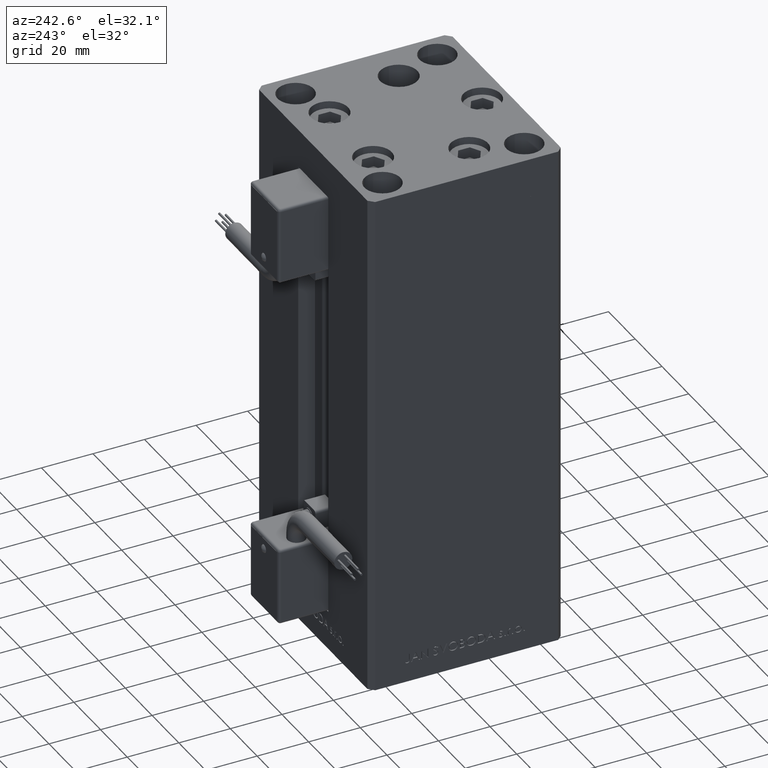
[diagram: clean part render]
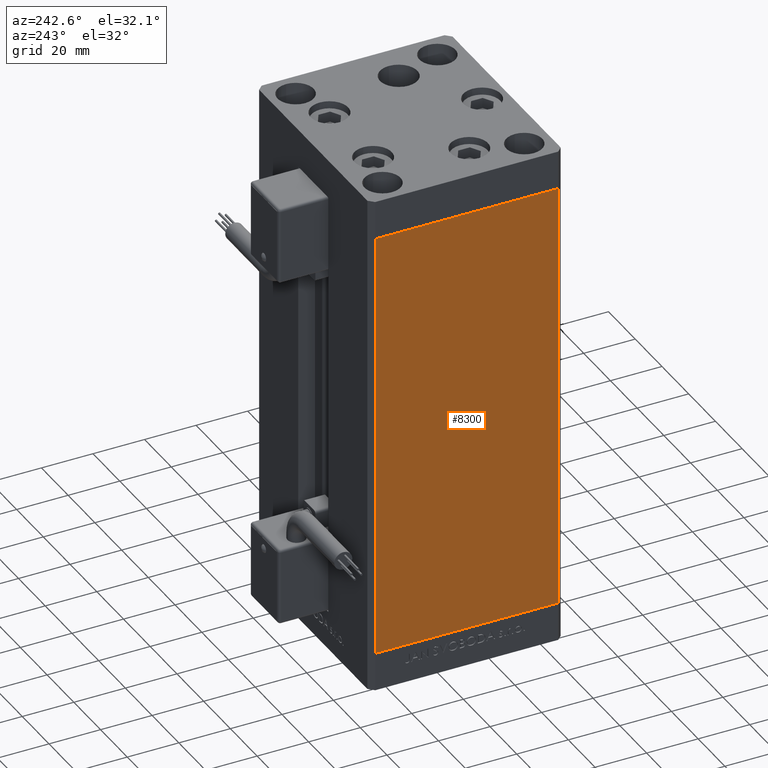
[diagram: same view with one face highlighted and labeled with its STEP entity id]
A machine part, auxiliary view. The second image highlights one B-rep face of the part: STEP entity #8300.
In plain terms, the highlighted planar face has unit normal (1, 0, 0).
Its self-contained STEP definition (entity closure, byte-faithful):
#2189 = VECTOR ( 'NONE', #3389, 1000.000000000000000 ) ;
#2559 = ORIENTED_EDGE ( 'NONE', *, *, #4507, .T. ) ;
#2785 = PLANE ( 'NONE',  #48603 ) ;
#3389 = DIRECTION ( 'NONE',  ( 2.931927001650941360E-16, -1.000000000000000000, 0.000000000000000000 ) ) ;
#3663 = VERTEX_POINT ( 'NONE', #18342 ) ;
#4171 = ORIENTED_EDGE ( 'NONE', *, *, #8487, .F. ) ;
#4507 = EDGE_CURVE ( 'NONE', #3663, #12194, #39414, .T. ) ;
#4508 = ORIENTED_EDGE ( 'NONE', *, *, #8009, .T. ) ;
#4574 = LINE ( 'NONE', #45581, #26803 ) ;
#6282 = LINE ( 'NONE', #50418, #25022 ) ;
#8009 = EDGE_CURVE ( 'NONE', #15875, #3663, #34672, .T. ) ;
#8300 = ADVANCED_FACE ( 'NONE', ( #38034 ), #2785, .F. ) ;
#8487 = EDGE_CURVE ( 'NONE', #24429, #12194, #4574, .T. ) ;
#9174 = EDGE_CURVE ( 'NONE', #15875, #24429, #6282, .T. ) ;
#11250 = DIRECTION ( 'NONE',  ( -0.000000000000000000, -0.000000000000000000, -1.000000000000000000 ) ) ;
#12194 = VERTEX_POINT ( 'NONE', #50050 ) ;
#15875 = VERTEX_POINT ( 'NONE', #32661 ) ;
#18342 = CARTESIAN_POINT ( 'NONE',  ( -42.50000000000000711, 35.50000000000001421, 0.000000000000000000 ) ) ;
#21135 = DIRECTION ( 'NONE',  ( -0.000000000000000000, -0.000000000000000000, -1.000000000000000000 ) ) ;
#22752 = DIRECTION ( 'NONE',  ( -2.931927001650941360E-16, 1.000000000000000000, 0.000000000000000000 ) ) ;
#22868 = CARTESIAN_POINT ( 'NONE',  ( -42.50000000000000711, 35.50000000000001421, 0.000000000000000000 ) ) ;
#24429 = VERTEX_POINT ( 'NONE', #43560 ) ;
#25022 = VECTOR ( 'NONE', #29443, 1000.000000000000000 ) ;
#25093 = VECTOR ( 'NONE', #11250, 1000.000000000000000 ) ;
#26707 = CARTESIAN_POINT ( 'NONE',  ( -42.50000000000000711, 35.50000000000001421, 168.5000000000000000 ) ) ;
#26803 = VECTOR ( 'NONE', #21135, 1000.000000000000000 ) ;
#28357 = EDGE_LOOP ( 'NONE', ( #2559, #4171, #39413, #4508 ) ) ;
#29443 = DIRECTION ( 'NONE',  ( 2.931927001650941360E-16, -1.000000000000000000, 0.000000000000000000 ) ) ;
#30712 = CARTESIAN_POINT ( 'NONE',  ( -42.50000000000000711, 35.50000000000001421, 168.5000000000000000 ) ) ;
#32661 = CARTESIAN_POINT ( 'NONE',  ( -42.50000000000000711, 35.50000000000001421, 168.5000000000000000 ) ) ;
#34672 = LINE ( 'NONE', #30712, #25093 ) ;
#35107 = DIRECTION ( 'NONE',  ( 1.000000000000000000, 2.931927001650941360E-16, -0.000000000000000000 ) ) ;
#38034 = FACE_OUTER_BOUND ( 'NONE', #28357, .T. ) ;
#39413 = ORIENTED_EDGE ( 'NONE', *, *, #9174, .F. ) ;
#39414 = LINE ( 'NONE', #22868, #2189 ) ;
#43560 = CARTESIAN_POINT ( 'NONE',  ( -42.49999999999998579, -35.50000000000000711, 168.5000000000000000 ) ) ;
#45581 = CARTESIAN_POINT ( 'NONE',  ( -42.49999999999998579, -35.50000000000000711, 168.5000000000000000 ) ) ;
#48603 = AXIS2_PLACEMENT_3D ( 'NONE', #26707, #35107, #22752 ) ;
#50050 = CARTESIAN_POINT ( 'NONE',  ( -42.49999999999998579, -35.50000000000000711, 0.000000000000000000 ) ) ;
#50418 = CARTESIAN_POINT ( 'NONE',  ( -42.50000000000000711, 35.50000000000001421, 168.5000000000000000 ) ) ;